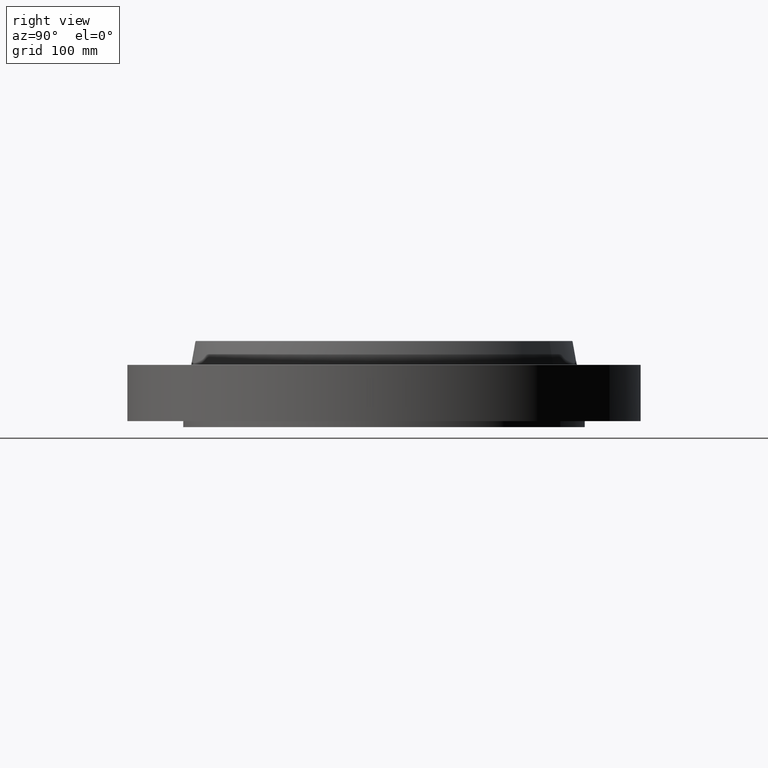
[diagram: clean part render]
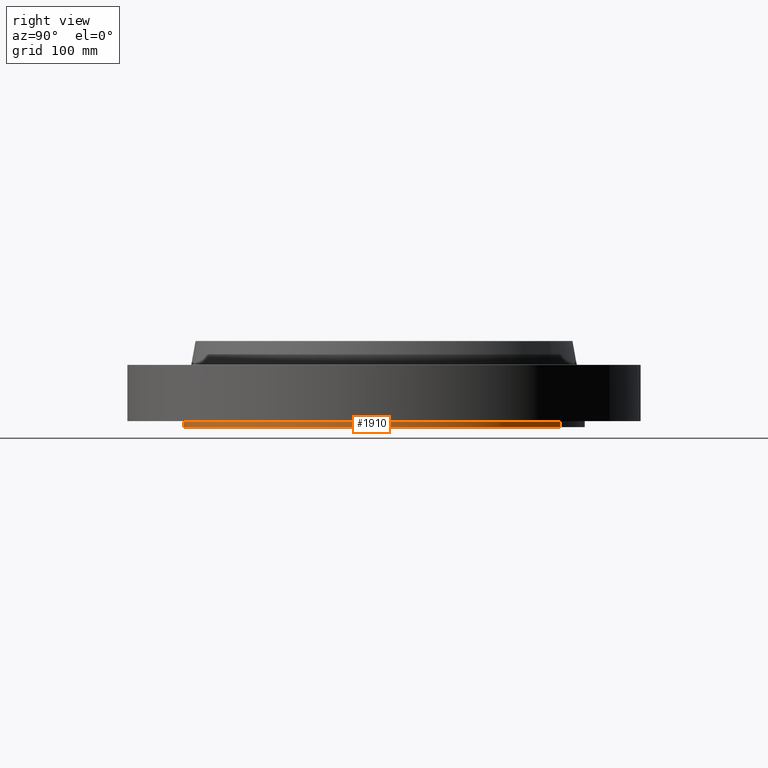
[diagram: same view with one face highlighted and labeled with its STEP entity id]
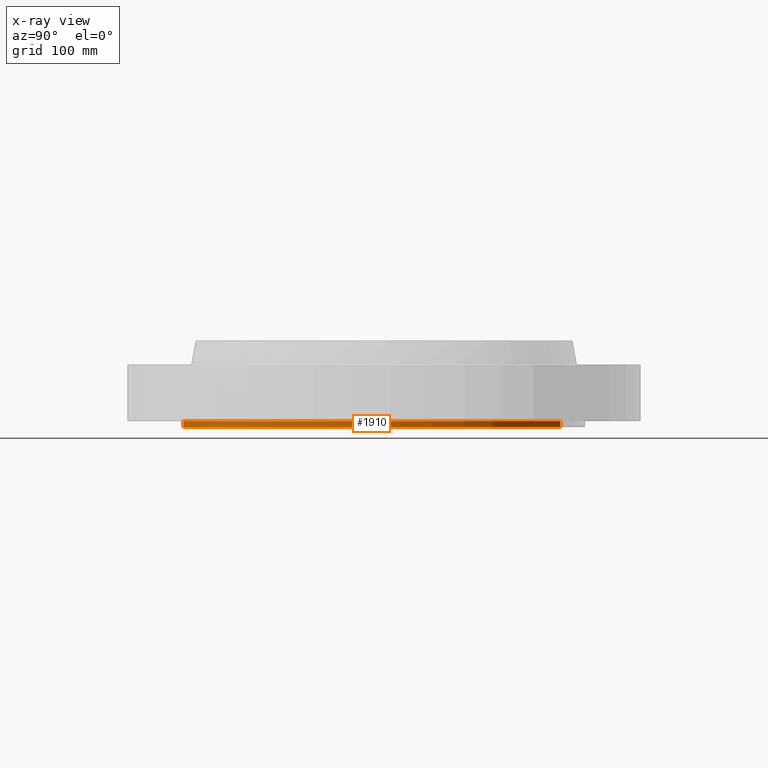
[diagram: x-ray of the same camera — body ghosted, the highlighted face saturated]
A machine part, right view. The second image highlights one B-rep face of the part: STEP entity #1910.
The next image is the same camera in x-ray: the body ghosted, the highlighted face saturated — about 0% of this face is hidden behind the body in this view.
In plain terms, the highlighted cylindrical surface (partial cylindrical patch) has radius 317.5 mm, axis along (0, 0, -1).
Its self-contained STEP definition (entity closure, byte-faithful):
#391=AXIS2_PLACEMENT_3D('Circle Axis2P3D',#389,#390,$) ;
#1780=AXIS2_PLACEMENT_3D('Circle Axis2P3D',#1778,#1779,$) ;
#1892=AXIS2_PLACEMENT_3D('Cylinder Axis2P3D',#1889,#1890,#1891) ;
#389=CARTESIAN_POINT('Axis2P3D Location',(0.,0.,-0.375000000001)) ;
#393=CARTESIAN_POINT('Vertex',(5.99281923258,10.9697820237,-0.375000000001)) ;
#395=CARTESIAN_POINT('Vertex',(-5.99281923258,-10.9697820237,-0.375000000001)) ;
#1778=CARTESIAN_POINT('Axis2P3D Location',(0.,0.,0.)) ;
#1782=CARTESIAN_POINT('Vertex',(5.99281923258,10.9697820237,1.39870617276E-015)) ;
#1784=CARTESIAN_POINT('Vertex',(-5.99281923258,-10.9697820237,1.39870617276E-015)) ;
#1889=CARTESIAN_POINT('Axis2P3D Location',(0.,0.,2.31250000001)) ;
#1894=CARTESIAN_POINT('Line Origine',(5.99281923258,10.9697820237,-0.187500000001)) ;
#1899=CARTESIAN_POINT('Line Origine',(-5.99281923258,-10.9697820237,-0.187500000001)) ;
#390=DIRECTION('Axis2P3D Direction',(0.,0.,-0.0393700787402)) ;
#1779=DIRECTION('Axis2P3D Direction',(0.,0.,-0.0393700787402)) ;
#1890=DIRECTION('Axis2P3D Direction',(0.,0.,-0.0393700787402)) ;
#1891=DIRECTION('Axis2P3D XDirection',(-0.0188750212049,-0.0345504945626,0.)) ;
#1895=DIRECTION('Vector Direction',(0.,0.,-0.0393700787402)) ;
#1900=DIRECTION('Vector Direction',(0.,0.,-0.0393700787402)) ;
#1896=VECTOR('Line Direction',#1895,0.0393700787402) ;
#1901=VECTOR('Line Direction',#1900,0.0393700787402) ;
#1905=ORIENTED_EDGE('',*,*,#397,.F.) ;
#1906=ORIENTED_EDGE('',*,*,#1898,.T.) ;
#1907=ORIENTED_EDGE('',*,*,#1786,.T.) ;
#1908=ORIENTED_EDGE('',*,*,#1903,.F.) ;
#1910=ADVANCED_FACE('PartBody',(#1909),#1893,.T.) ;
#392=CIRCLE('generated circle',#391,12.5000000001) ;
#1781=CIRCLE('generated circle',#1780,12.5000000001) ;
#1893=CYLINDRICAL_SURFACE('generated cylinder',#1892,12.5000000001) ;
#397=EDGE_CURVE('',#394,#396,#392,.T.) ;
#1786=EDGE_CURVE('',#1783,#1785,#1781,.T.) ;
#1898=EDGE_CURVE('',#394,#1783,#1897,.F.) ;
#1903=EDGE_CURVE('',#396,#1785,#1902,.F.) ;
#1904=EDGE_LOOP('',(#1905,#1906,#1907,#1908)) ;
#1909=FACE_OUTER_BOUND('',#1904,.T.) ;
#1897=LINE('Line',#1894,#1896) ;
#1902=LINE('Line',#1899,#1901) ;
#394=VERTEX_POINT('',#393) ;
#396=VERTEX_POINT('',#395) ;
#1783=VERTEX_POINT('',#1782) ;
#1785=VERTEX_POINT('',#1784) ;